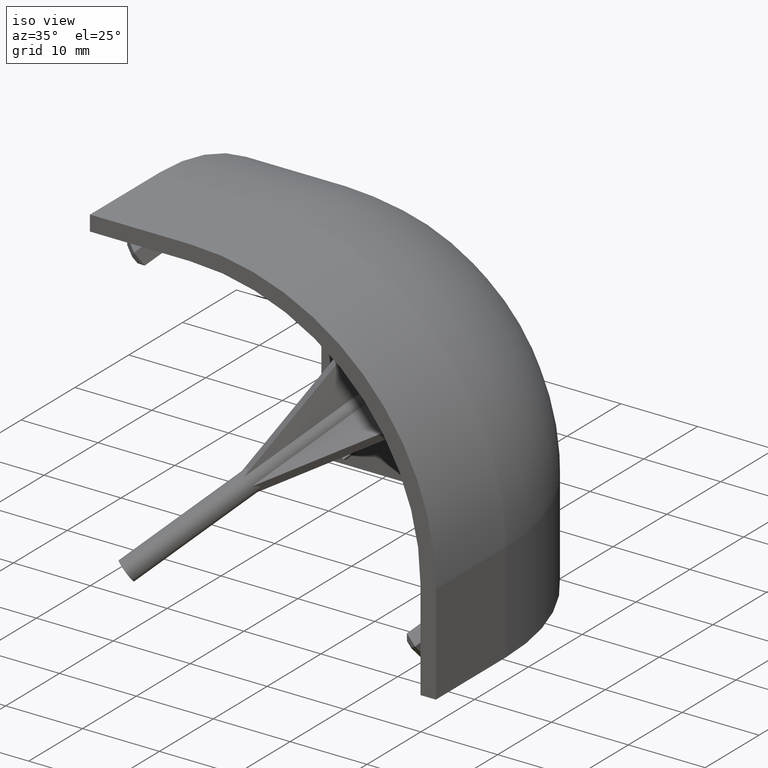
[diagram: clean part render]
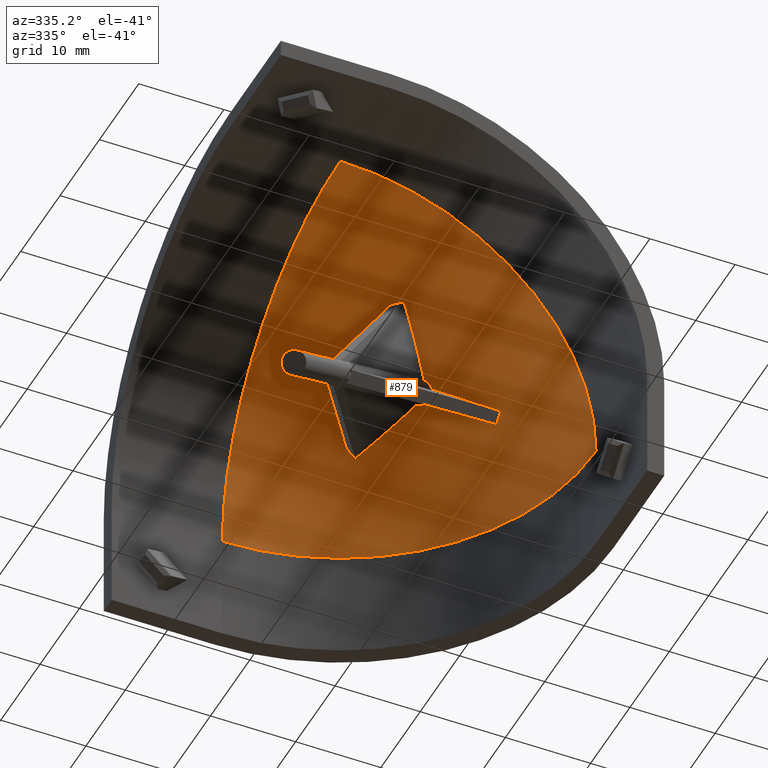
[diagram: tour spotlight — one face highlighted and labeled with its STEP entity id]
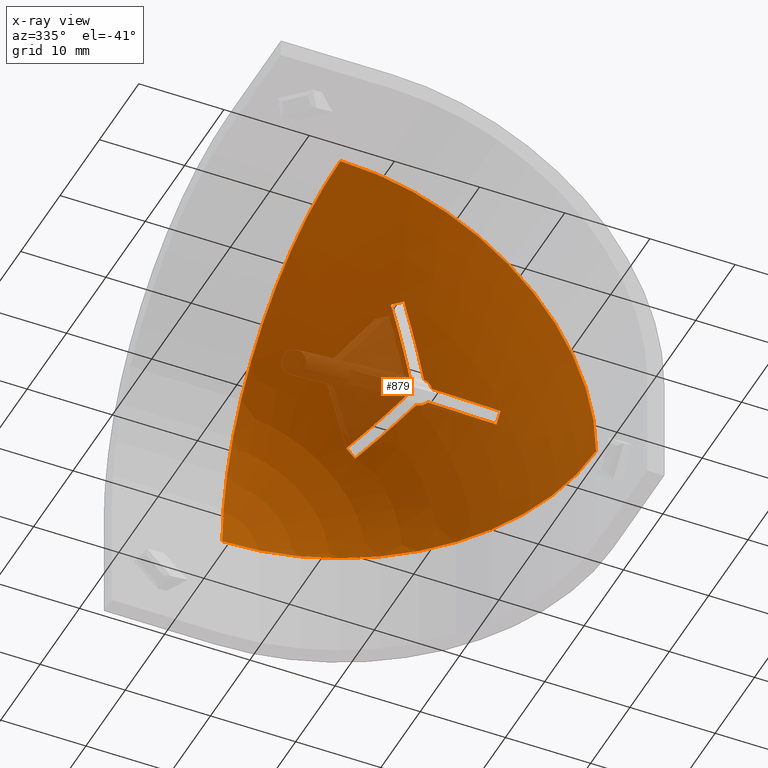
[diagram: x-ray of the same camera — body ghosted, this tour face saturated]
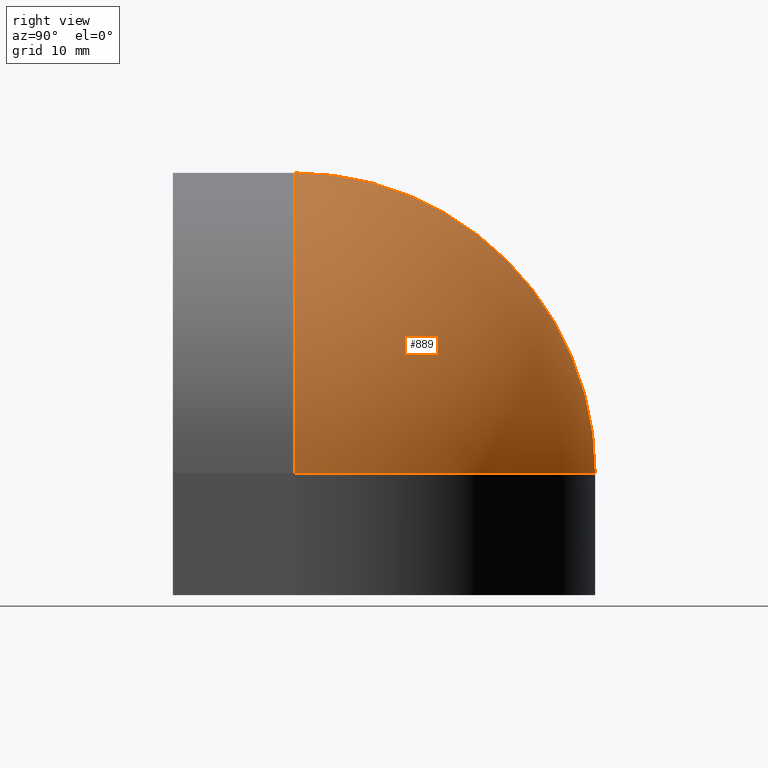
[diagram: tour spotlight — one face highlighted and labeled with its STEP entity id]
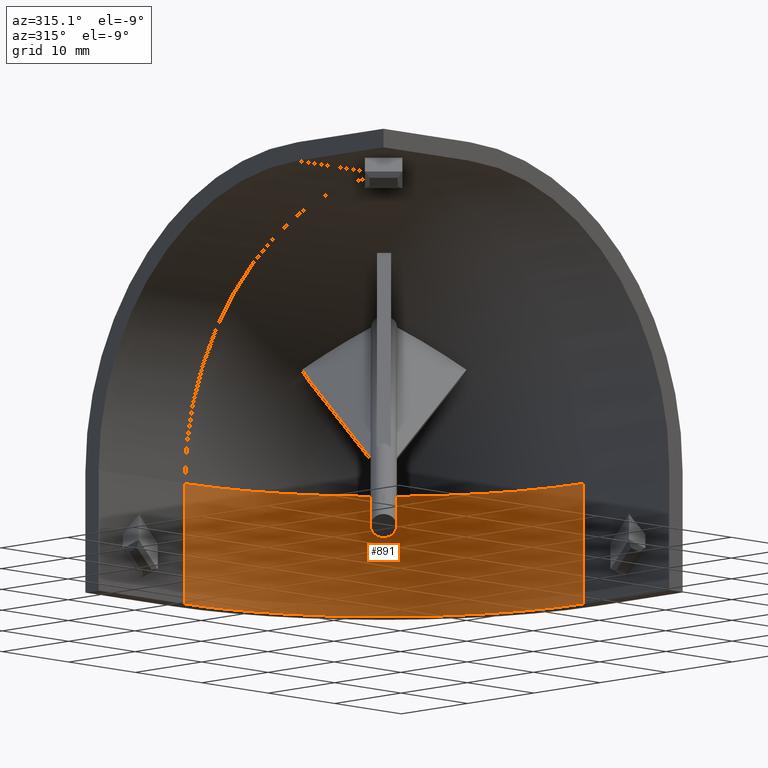
[diagram: tour spotlight — one face highlighted and labeled with its STEP entity id]
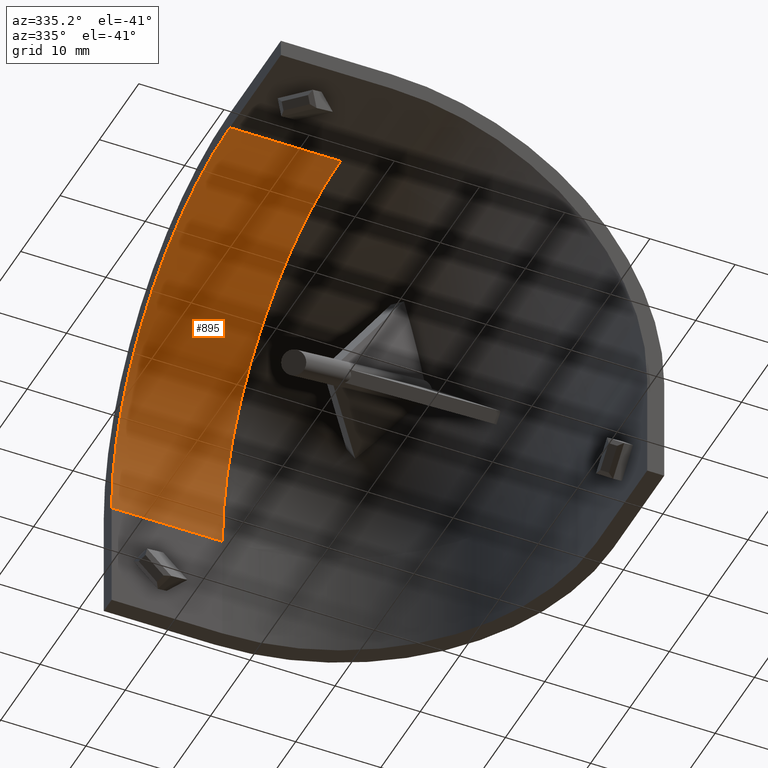
[diagram: tour spotlight — one face highlighted and labeled with its STEP entity id]
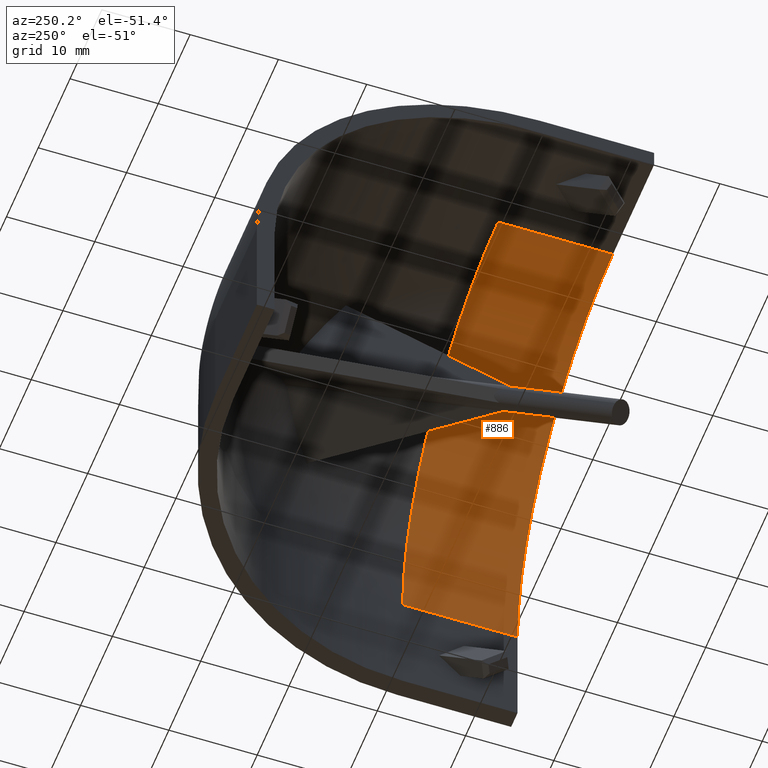
[diagram: tour spotlight — one face highlighted and labeled with its STEP entity id]
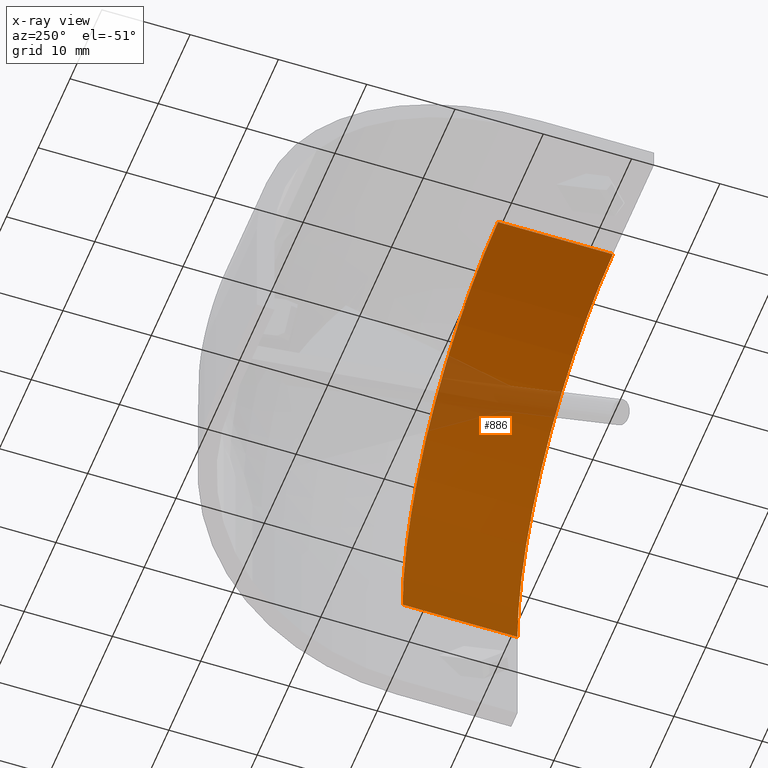
[diagram: x-ray of the same camera — body ghosted, this tour face saturated]
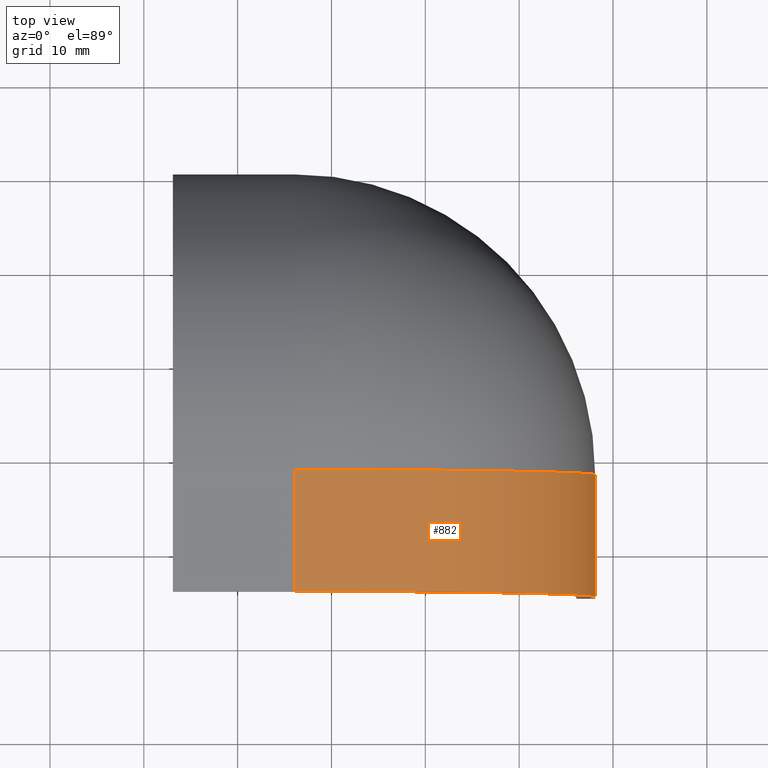
[diagram: tour spotlight — one face highlighted and labeled with its STEP entity id]
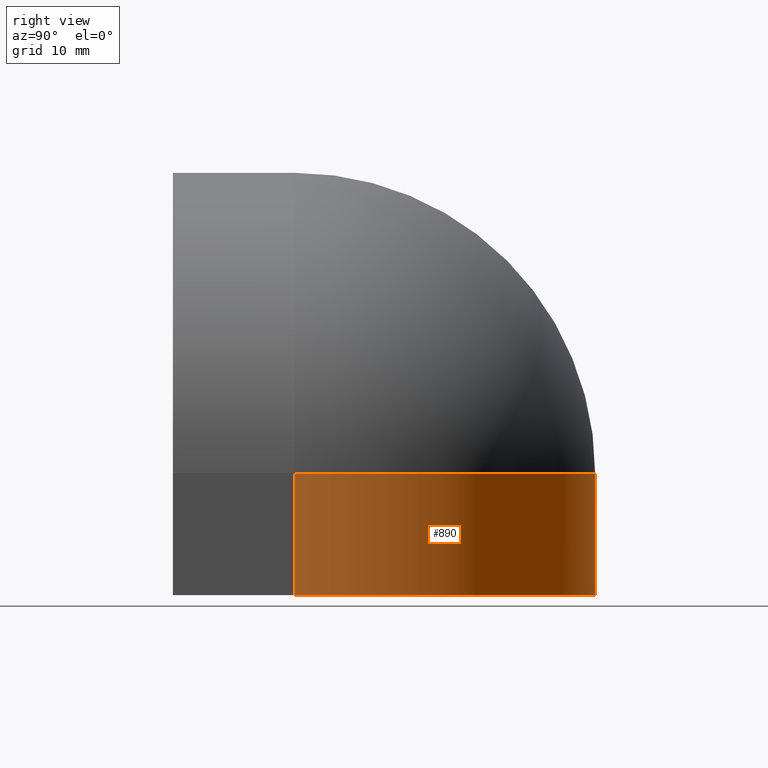
[diagram: tour spotlight — one face highlighted and labeled with its STEP entity id]
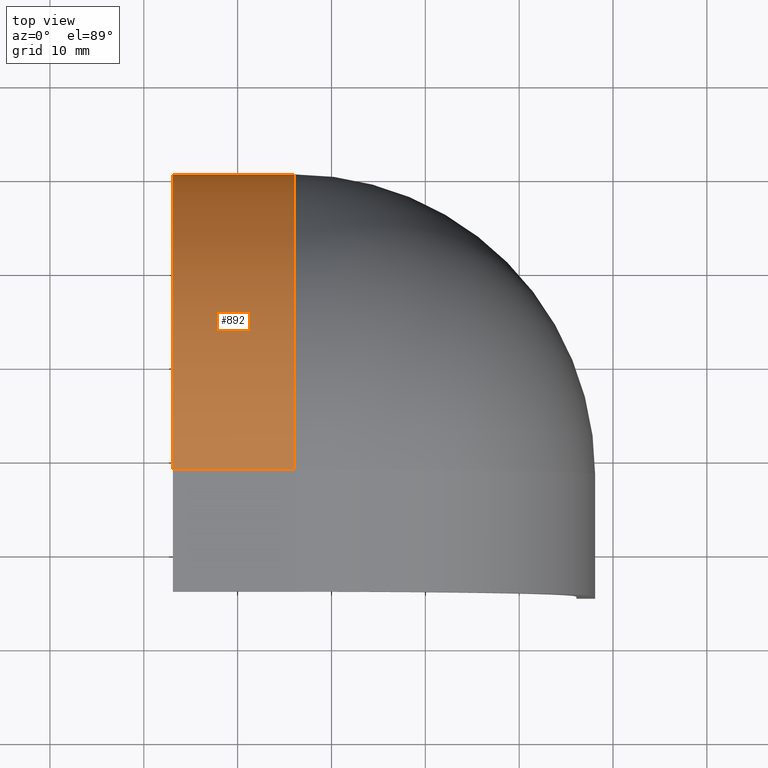
[diagram: tour spotlight — one face highlighted and labeled with its STEP entity id]
A machine part: a face-by-face anatomy tour. The part has 55 B-rep faces; the first image is the clean iso view, then the 8 largest visible faces are spotlighted one at a time (largest first), each with its STEP entity span.

Face 1 — auxiliary view, entity #879. An x-ray twin of the same camera follows (body ghosted, this face saturated) — the face is partly hidden behind the body. In plain terms, the highlighted spherical surface has radius 30 mm.
Definition (entity closure, byte-faithful):
#63=SPHERICAL_SURFACE($,#944,30.);
#66=FACE_BOUND($,#329,.T.);
#272=FACE_OUTER_BOUND($,#328,.T.);
#328=EDGE_LOOP($,(#630,#631,#632));
#329=EDGE_LOOP($,(#633,#634,#635,#636,#637,#638,#639,#640,#641,#642,#643,
#644));
#387=CIRCLE($,#939,1.4);
#388=CIRCLE($,#941,1.4);
#389=CIRCLE($,#943,1.4);
#390=CIRCLE($,#945,30.);
#391=CIRCLE($,#946,30.);
#392=CIRCLE($,#947,30.);
#393=CIRCLE($,#948,29.9616539883931);
#394=CIRCLE($,#949,29.9906235346983);
#395=CIRCLE($,#950,29.9906235346983);
#396=CIRCLE($,#951,29.9616539883931);
#397=CIRCLE($,#952,29.9906235346983);
#398=CIRCLE($,#953,29.9906235346983);
#399=CIRCLE($,#954,29.9616539883931);
#400=CIRCLE($,#955,29.9906235346983);
#401=CIRCLE($,#956,29.9906235346983);
#414=VERTEX_POINT($,#1299);
#415=VERTEX_POINT($,#1301);
#418=VERTEX_POINT($,#1307);
#419=VERTEX_POINT($,#1309);
#422=VERTEX_POINT($,#1315);
#423=VERTEX_POINT($,#1317);
#424=VERTEX_POINT($,#1321);
#425=VERTEX_POINT($,#1322);
#426=VERTEX_POINT($,#1324);
#427=VERTEX_POINT($,#1327);
#428=VERTEX_POINT($,#1328);
#429=VERTEX_POINT($,#1331);
#430=VERTEX_POINT($,#1333);
#431=VERTEX_POINT($,#1336);
#432=VERTEX_POINT($,#1338);
#493=EDGE_CURVE($,#415,#414,#387,.T.);
#497=EDGE_CURVE($,#419,#418,#388,.T.);
#501=EDGE_CURVE($,#423,#422,#389,.T.);
#503=EDGE_CURVE($,#424,#425,#390,.T.);
#504=EDGE_CURVE($,#426,#424,#391,.T.);
#505=EDGE_CURVE($,#426,#425,#392,.T.);
#506=EDGE_CURVE($,#427,#428,#393,.T.);
#507=EDGE_CURVE($,#428,#423,#394,.T.);
#508=EDGE_CURVE($,#429,#422,#395,.T.);
#509=EDGE_CURVE($,#429,#430,#396,.T.);
#510=EDGE_CURVE($,#430,#419,#397,.T.);
#511=EDGE_CURVE($,#431,#418,#398,.T.);
#512=EDGE_CURVE($,#431,#432,#399,.T.);
#513=EDGE_CURVE($,#432,#415,#400,.T.);
#514=EDGE_CURVE($,#427,#414,#401,.T.);
#630=ORIENTED_EDGE($,*,*,#503,.F.);
#631=ORIENTED_EDGE($,*,*,#504,.F.);
#632=ORIENTED_EDGE($,*,*,#505,.T.);
#633=ORIENTED_EDGE($,*,*,#506,.T.);
#634=ORIENTED_EDGE($,*,*,#507,.T.);
#635=ORIENTED_EDGE($,*,*,#501,.T.);
#636=ORIENTED_EDGE($,*,*,#508,.F.);
#637=ORIENTED_EDGE($,*,*,#509,.T.);
#638=ORIENTED_EDGE($,*,*,#510,.T.);
#639=ORIENTED_EDGE($,*,*,#497,.T.);
#640=ORIENTED_EDGE($,*,*,#511,.F.);
#641=ORIENTED_EDGE($,*,*,#512,.T.);
#642=ORIENTED_EDGE($,*,*,#513,.T.);
#643=ORIENTED_EDGE($,*,*,#493,.T.);
#644=ORIENTED_EDGE($,*,*,#514,.F.);
#879=ADVANCED_FACE($,(#272,#66),#63,.F.);
#939=AXIS2_PLACEMENT_3D($,#1302,#1030,#1031);
#941=AXIS2_PLACEMENT_3D($,#1310,#1036,#1037);
#943=AXIS2_PLACEMENT_3D($,#1318,#1042,#1043);
#944=AXIS2_PLACEMENT_3D($,#1320,#1045,#1046);
#945=AXIS2_PLACEMENT_3D($,#1323,#1047,#1048);
#946=AXIS2_PLACEMENT_3D($,#1325,#1049,#1050);
#947=AXIS2_PLACEMENT_3D($,#1326,#1051,#1052);
#948=AXIS2_PLACEMENT_3D($,#1329,#1053,#1054);
#949=AXIS2_PLACEMENT_3D($,#1330,#1055,#1056);
#950=AXIS2_PLACEMENT_3D($,#1332,#1057,#1058);
#951=AXIS2_PLACEMENT_3D($,#1334,#1059,#1060);
#952=AXIS2_PLACEMENT_3D($,#1335,#1061,#1062);
#953=AXIS2_PLACEMENT_3D($,#1337,#1063,#1064);
#954=AXIS2_PLACEMENT_3D($,#1339,#1065,#1066);
#955=AXIS2_PLACEMENT_3D($,#1340,#1067,#1068);
#956=AXIS2_PLACEMENT_3D($,#1341,#1069,#1070);
#1030=DIRECTION('center_axis',(0.577350269189624,0.577350269189624,-0.57735026918963));
#1031=DIRECTION('ref_axis',(0.707106781186551,6.40987562127852E-017,0.707106781186544));
#1036=DIRECTION('center_axis',(0.577350269189624,0.577350269189624,-0.57735026918963));
#1037=DIRECTION('ref_axis',(0.707106781186551,6.40987562127852E-017,0.707106781186544));
#1042=DIRECTION('center_axis',(0.577350269189624,0.577350269189624,-0.57735026918963));
#1043=DIRECTION('ref_axis',(0.70710678118655,1.70899131969916E-015,0.707106781186545));
#1045=DIRECTION('center_axis',(5.9211894646675E-017,0.,1.));
#1046=DIRECTION('ref_axis',(1.,0.,0.));
#1047=DIRECTION('center_axis',(0.,0.,-1.));
#1048=DIRECTION('ref_axis',(1.,0.,0.));
#1049=DIRECTION('center_axis',(1.,0.,0.));
#1050=DIRECTION('ref_axis',(0.,0.,1.));
#1051=DIRECTION('center_axis',(0.,-1.,0.));
#1052=DIRECTION('ref_axis',(1.,0.,0.));
#1053=DIRECTION('center_axis',(0.551217453556055,0.551217453556047,0.626353444782071));
#1054=DIRECTION('ref_axis',(-0.750697811457472,-9.17961462769757E-017,0.660645741583915));
#1055=DIRECTION('center_axis',(0.707106781186543,-0.707106781186552,-1.30843890190042E-015));
#1056=DIRECTION('ref_axis',(-0.707106781186552,-0.707106781186543,0.));
#1057=DIRECTION('center_axis',(-0.707106781186556,2.74615064022129E-015,
-0.707106781186539));
#1058=DIRECTION('ref_axis',(0.707106781186539,-1.06429637653395E-014,-0.707106781186556));
#1059=DIRECTION('center_axis',(0.55121745355604,-0.626353444782076,-0.551217453556055));
#1060=DIRECTION('ref_axis',(-2.73519133342325E-014,-0.660645741583926,0.750697811457463));
#1061=DIRECTION('center_axis',(-0.707106781186556,2.74615064022129E-015,
-0.707106781186539));
#1062=DIRECTION('ref_axis',(0.707106781186539,-8.67632915652678E-016,-0.707106781186556));
#1063=DIRECTION('center_axis',(2.77555756156289E-017,0.707106781186548,
0.707106781186547));
#1064=DIRECTION('ref_axis',(2.66074094133488E-015,0.707106781186547,-0.707106781186548));
#1065=DIRECTION('center_axis',(-0.626353444782076,0.551217453556047,-0.551217453556048));
#1066=DIRECTION('ref_axis',(0.660645741583929,4.21738323785582E-014,-0.750697811457461));
#1067=DIRECTION('center_axis',(2.77555756156289E-017,0.707106781186548,
0.707106781186547));
#1068=DIRECTION('ref_axis',(7.98222282400464E-015,0.707106781186547,-0.707106781186548));
#1069=DIRECTION('center_axis',(0.707106781186543,-0.707106781186552,-1.30843890190042E-015));
#1070=DIRECTION('ref_axis',(-0.707106781186552,-0.707106781186543,3.52837385698756E-015));
#1299=CARTESIAN_POINT('',(30.3493533652992,29.2886931935193,-31.2668665029666));
#1301=CARTESIAN_POINT('',(31.2668665029663,29.2886931935194,-30.3493533652995));
#1302=CARTESIAN_POINT('Origin',(30.3016376872806,30.3016376872806,-30.3016376872239));
#1307=CARTESIAN_POINT('',(31.2668665029663,30.3493533652992,-29.2886931935196));
#1309=CARTESIAN_POINT('',(30.3493533652992,31.2668665029663,-29.2886931935197));
#1310=CARTESIAN_POINT('Origin',(30.3016376872806,30.3016376872806,-30.3016376872239));
#1315=CARTESIAN_POINT('',(29.2886931935194,31.2668665029663,-30.3493533652995));
#1317=CARTESIAN_POINT('',(29.2886931935194,30.3493533652991,-31.2668665029666));
#1318=CARTESIAN_POINT('Origin',(30.3016376872806,30.3016376872806,-30.3016376872239));
#1320=CARTESIAN_POINT('Origin',(13.,13.,-13.));
#1321=CARTESIAN_POINT('',(12.9999999999998,43.,-13.));
#1322=CARTESIAN_POINT('',(43.0000000000001,12.9999999999998,-13.));
#1323=CARTESIAN_POINT('Origin',(13.,13.,-13.));
#1324=CARTESIAN_POINT('',(12.9999999999999,12.9999999999996,-43.));
#1325=CARTESIAN_POINT('Origin',(13.,13.,-13.));
#1326=CARTESIAN_POINT('Origin',(13.,12.9999999999996,-13.));
#1327=CARTESIAN_POINT('',(25.9603179193382,24.8996577475581,-37.298730520763));
#1328=CARTESIAN_POINT('',(24.8996577475584,25.960317919338,-37.298730520763));
#1329=CARTESIAN_POINT('Origin',(12.1641663295399,12.1641663295399,-13.9497654607635));
#1330=CARTESIAN_POINT('Origin',(12.4696699141102,13.5303300858899,-13.));
#1331=CARTESIAN_POINT('',(24.8996577475583,37.2987305207628,-25.9603179193386));
#1332=CARTESIAN_POINT('Origin',(12.46966991411,13.,-13.53033008589));
#1333=CARTESIAN_POINT('',(25.9603179193381,37.2987305207628,-24.8996577475587));
#1334=CARTESIAN_POINT('Origin',(12.16416632954,13.9497654607634,-12.1641663295399));
#1335=CARTESIAN_POINT('Origin',(13.5303300858898,13.,-12.4696699141102));
#1336=CARTESIAN_POINT('',(37.2987305207628,25.9603179193383,-24.8996577475585));
#1337=CARTESIAN_POINT('Origin',(13.,13.5303300858899,-12.4696699141101));
#1338=CARTESIAN_POINT('',(37.2987305207628,24.8996577475585,-25.9603179193383));
#1339=CARTESIAN_POINT('Origin',(13.9497654607634,12.16416632954,-12.16416632954));
#1340=CARTESIAN_POINT('Origin',(13.,12.4696699141101,-13.5303300858899));
#1341=CARTESIAN_POINT('Origin',(13.53033008589,12.46966991411,-13.));

Face 2 — right view, entity #889. In plain terms, the highlighted spherical surface has radius 32 mm.
Definition (entity closure, byte-faithful):
#64=SPHERICAL_SURFACE($,#973,32.);
#282=FACE_OUTER_BOUND($,#341,.T.);
#341=EDGE_LOOP($,(#701,#702,#703));
#405=CIRCLE($,#963,32.);
#409=CIRCLE($,#974,32.);
#410=CIRCLE($,#975,32.);
#442=VERTEX_POINT($,#1362);
#444=VERTEX_POINT($,#1368);
#461=VERTEX_POINT($,#1418);
#528=EDGE_CURVE($,#444,#442,#405,.T.);
#553=EDGE_CURVE($,#461,#444,#409,.T.);
#554=EDGE_CURVE($,#442,#461,#410,.T.);
#701=ORIENTED_EDGE($,*,*,#553,.F.);
#702=ORIENTED_EDGE($,*,*,#554,.F.);
#703=ORIENTED_EDGE($,*,*,#528,.F.);
#889=ADVANCED_FACE($,(#282),#64,.T.);
#963=AXIS2_PLACEMENT_3D($,#1370,#1093,#1094);
#973=AXIS2_PLACEMENT_3D($,#1417,#1134,#1135);
#974=AXIS2_PLACEMENT_3D($,#1419,#1136,#1137);
#975=AXIS2_PLACEMENT_3D($,#1420,#1138,#1139);
#1093=DIRECTION('center_axis',(0.,0.,1.));
#1094=DIRECTION('ref_axis',(1.,0.,0.));
#1134=DIRECTION('center_axis',(5.55111512312578E-017,0.,1.));
#1135=DIRECTION('ref_axis',(1.,0.,0.));
#1136=DIRECTION('center_axis',(0.,-1.,0.));
#1137=DIRECTION('ref_axis',(1.,0.,0.));
#1138=DIRECTION('center_axis',(-1.,0.,0.));
#1139=DIRECTION('ref_axis',(0.,0.,1.));
#1362=CARTESIAN_POINT('',(12.9999999999998,45.,-13.));
#1368=CARTESIAN_POINT('',(45.0000000000001,12.9999999999998,-13.));
#1370=CARTESIAN_POINT('Origin',(13.,13.,-13.));
#1417=CARTESIAN_POINT('Origin',(13.,13.,-13.));
#1418=CARTESIAN_POINT('',(12.9999999999999,12.9999999999996,-45.));
#1419=CARTESIAN_POINT('Origin',(13.,12.9999999999996,-13.));
#1420=CARTESIAN_POINT('Origin',(13.,13.,-13.));

Face 3 — auxiliary view, entity #891. In plain terms, the highlighted cylindrical surface (partial cylindrical patch) has radius 30 mm, axis along (0, 0, -1).
Definition (entity closure, byte-faithful):
#95=LINE($,#1392,#194);
#108=LINE($,#1424,#207);
#194=VECTOR($,#1114,12.9999999999998);
#207=VECTOR($,#1145,12.9999999999998);
#284=FACE_OUTER_BOUND($,#343,.T.);
#343=EDGE_LOOP($,(#708,#709,#710,#711));
#392=CIRCLE($,#947,30.);
#406=CIRCLE($,#966,29.9999999999999);
#425=VERTEX_POINT($,#1322);
#426=VERTEX_POINT($,#1324);
#448=VERTEX_POINT($,#1380);
#449=VERTEX_POINT($,#1382);
#505=EDGE_CURVE($,#426,#425,#392,.T.);
#534=EDGE_CURVE($,#449,#448,#406,.T.);
#540=EDGE_CURVE($,#425,#448,#95,.T.);
#556=EDGE_CURVE($,#449,#426,#108,.T.);
#708=ORIENTED_EDGE($,*,*,#505,.F.);
#709=ORIENTED_EDGE($,*,*,#556,.F.);
#710=ORIENTED_EDGE($,*,*,#534,.T.);
#711=ORIENTED_EDGE($,*,*,#540,.F.);
#875=CYLINDRICAL_SURFACE($,#977,30.);
#891=ADVANCED_FACE($,(#284),#875,.F.);
#947=AXIS2_PLACEMENT_3D($,#1326,#1051,#1052);
#966=AXIS2_PLACEMENT_3D($,#1383,#1104,#1105);
#977=AXIS2_PLACEMENT_3D($,#1423,#1143,#1144);
#1051=DIRECTION('center_axis',(0.,-1.,0.));
#1052=DIRECTION('ref_axis',(1.,0.,0.));
#1104=DIRECTION('center_axis',(0.,-1.,0.));
#1105=DIRECTION('ref_axis',(1.,0.,0.));
#1114=DIRECTION($,(0.,-1.,0.));
#1143=DIRECTION('center_axis',(0.,-1.,0.));
#1144=DIRECTION('ref_axis',(1.,0.,0.));
#1145=DIRECTION($,(0.,1.,0.));
#1322=CARTESIAN_POINT('',(43.0000000000001,12.9999999999998,-13.));
#1324=CARTESIAN_POINT('',(12.9999999999999,12.9999999999996,-43.));
#1326=CARTESIAN_POINT('Origin',(13.,12.9999999999996,-13.));
#1380=CARTESIAN_POINT('',(43.0000000000001,0.,-13.));
#1382=CARTESIAN_POINT('',(13.,-1.94289029309402E-013,-42.9999999999999));
#1383=CARTESIAN_POINT('Origin',(13.0000000000001,-2.22044604925031E-013,
-13.));
#1392=CARTESIAN_POINT($,(43.0000000000001,12.9999999999998,-13.));
#1423=CARTESIAN_POINT('Origin',(12.9999999999998,45.,-13.));
#1424=CARTESIAN_POINT($,(13.,-1.94289029309402E-013,-42.9999999999999));

Face 4 — auxiliary view, entity #895. In plain terms, the highlighted cylindrical surface (partial cylindrical patch) has radius 30 mm, axis along (1, 0, 0).
Definition (entity closure, byte-faithful):
#102=LINE($,#1407,#201);
#110=LINE($,#1429,#209);
#201=VECTOR($,#1127,12.9999999999998);
#209=VECTOR($,#1153,12.9999999999999);
#288=FACE_OUTER_BOUND($,#348,.T.);
#348=EDGE_LOOP($,(#728,#729,#730,#731));
#391=CIRCLE($,#946,30.);
#403=CIRCLE($,#959,30.);
#424=VERTEX_POINT($,#1321);
#426=VERTEX_POINT($,#1324);
#439=VERTEX_POINT($,#1354);
#440=VERTEX_POINT($,#1356);
#504=EDGE_CURVE($,#426,#424,#391,.T.);
#521=EDGE_CURVE($,#439,#440,#403,.T.);
#548=EDGE_CURVE($,#440,#424,#102,.T.);
#558=EDGE_CURVE($,#439,#426,#110,.T.);
#728=ORIENTED_EDGE($,*,*,#521,.F.);
#729=ORIENTED_EDGE($,*,*,#558,.T.);
#730=ORIENTED_EDGE($,*,*,#504,.T.);
#731=ORIENTED_EDGE($,*,*,#548,.F.);
#877=CYLINDRICAL_SURFACE($,#981,30.);
#895=ADVANCED_FACE($,(#288),#877,.F.);
#946=AXIS2_PLACEMENT_3D($,#1325,#1049,#1050);
#959=AXIS2_PLACEMENT_3D($,#1357,#1080,#1081);
#981=AXIS2_PLACEMENT_3D($,#1438,#1158,#1159);
#1049=DIRECTION('center_axis',(1.,0.,0.));
#1050=DIRECTION('ref_axis',(0.,0.,1.));
#1080=DIRECTION('center_axis',(1.,0.,0.));
#1081=DIRECTION('ref_axis',(0.,0.,1.));
#1127=DIRECTION($,(1.,0.,0.));
#1153=DIRECTION($,(1.,0.,0.));
#1158=DIRECTION('center_axis',(1.,0.,0.));
#1159=DIRECTION('ref_axis',(0.,1.,0.));
#1321=CARTESIAN_POINT('',(12.9999999999998,43.,-13.));
#1324=CARTESIAN_POINT('',(12.9999999999999,12.9999999999996,-43.));
#1325=CARTESIAN_POINT('Origin',(13.,13.,-13.));
#1354=CARTESIAN_POINT('',(0.,12.9999999999995,-42.9999999999999));
#1356=CARTESIAN_POINT('',(0.,43.,-13.));
#1357=CARTESIAN_POINT('Origin',(0.,12.9999999999999,-13.));
#1407=CARTESIAN_POINT($,(0.,43.,-13.));
#1429=CARTESIAN_POINT($,(0.,12.9999999999992,-42.9999999999997));
#1438=CARTESIAN_POINT('Origin',(-55.2177507691141,12.9999999999995,-12.9999999999998));

Face 5 — auxiliary view, entity #886. An x-ray twin of the same camera follows (body ghosted, this face saturated) — the face is partly hidden behind the body. In plain terms, the highlighted cylindrical surface (partial cylindrical patch) has radius 30 mm, axis along (0, -1, -0).
Definition (entity closure, byte-faithful):
#94=LINE($,#1391,#193);
#100=LINE($,#1404,#199);
#193=VECTOR($,#1113,13.);
#199=VECTOR($,#1123,13.);
#279=FACE_OUTER_BOUND($,#337,.T.);
#337=EDGE_LOOP($,(#681,#682,#683,#684));
#390=CIRCLE($,#945,30.);
#408=CIRCLE($,#970,30.);
#424=VERTEX_POINT($,#1321);
#425=VERTEX_POINT($,#1322);
#451=VERTEX_POINT($,#1389);
#456=VERTEX_POINT($,#1402);
#503=EDGE_CURVE($,#424,#425,#390,.T.);
#539=EDGE_CURVE($,#425,#451,#94,.T.);
#545=EDGE_CURVE($,#456,#451,#408,.T.);
#546=EDGE_CURVE($,#424,#456,#100,.T.);
#681=ORIENTED_EDGE($,*,*,#545,.F.);
#682=ORIENTED_EDGE($,*,*,#546,.F.);
#683=ORIENTED_EDGE($,*,*,#503,.T.);
#684=ORIENTED_EDGE($,*,*,#539,.T.);
#873=CYLINDRICAL_SURFACE($,#969,30.);
#886=ADVANCED_FACE($,(#279),#873,.F.);
#945=AXIS2_PLACEMENT_3D($,#1323,#1047,#1048);
#969=AXIS2_PLACEMENT_3D($,#1401,#1119,#1120);
#970=AXIS2_PLACEMENT_3D($,#1403,#1121,#1122);
#1047=DIRECTION('center_axis',(0.,0.,-1.));
#1048=DIRECTION('ref_axis',(1.,0.,0.));
#1113=DIRECTION($,(0.,0.,1.));
#1119=DIRECTION('center_axis',(0.,0.,1.));
#1120=DIRECTION('ref_axis',(1.,0.,0.));
#1121=DIRECTION('center_axis',(0.,0.,-1.));
#1122=DIRECTION('ref_axis',(1.,0.,0.));
#1123=DIRECTION($,(0.,0.,1.));
#1321=CARTESIAN_POINT('',(12.9999999999998,43.,-13.));
#1322=CARTESIAN_POINT('',(43.0000000000001,12.9999999999998,-13.));
#1323=CARTESIAN_POINT('Origin',(13.,13.,-13.));
#1389=CARTESIAN_POINT('',(43.0000000000001,12.9999999999998,0.));
#1391=CARTESIAN_POINT($,(43.0000000000001,12.9999999999998,-13.));
#1401=CARTESIAN_POINT('Origin',(13.,13.,-13.));
#1402=CARTESIAN_POINT('',(12.9999999999998,43.,0.));
#1403=CARTESIAN_POINT('Origin',(13.,13.,0.));
#1404=CARTESIAN_POINT($,(12.9999999999998,43.,-13.));

Face 6 — top view, entity #882. In plain terms, the highlighted cylindrical surface (partial cylindrical patch) has radius 32 mm, axis along (0, -1, -0).
Definition (entity closure, byte-faithful):
#83=LINE($,#1363,#182);
#85=LINE($,#1369,#184);
#182=VECTOR($,#1086,13.);
#184=VECTOR($,#1092,13.0000000000001);
#275=FACE_OUTER_BOUND($,#332,.T.);
#332=EDGE_LOOP($,(#657,#658,#659,#660));
#404=CIRCLE($,#962,32.);
#405=CIRCLE($,#963,32.);
#441=VERTEX_POINT($,#1360);
#442=VERTEX_POINT($,#1362);
#443=VERTEX_POINT($,#1366);
#444=VERTEX_POINT($,#1368);
#524=EDGE_CURVE($,#442,#441,#83,.T.);
#526=EDGE_CURVE($,#443,#441,#404,.T.);
#527=EDGE_CURVE($,#444,#443,#85,.T.);
#528=EDGE_CURVE($,#444,#442,#405,.T.);
#657=ORIENTED_EDGE($,*,*,#526,.F.);
#658=ORIENTED_EDGE($,*,*,#527,.F.);
#659=ORIENTED_EDGE($,*,*,#528,.T.);
#660=ORIENTED_EDGE($,*,*,#524,.T.);
#872=CYLINDRICAL_SURFACE($,#961,32.);
#882=ADVANCED_FACE($,(#275),#872,.T.);
#961=AXIS2_PLACEMENT_3D($,#1365,#1088,#1089);
#962=AXIS2_PLACEMENT_3D($,#1367,#1090,#1091);
#963=AXIS2_PLACEMENT_3D($,#1370,#1093,#1094);
#1086=DIRECTION($,(0.,0.,1.));
#1088=DIRECTION('center_axis',(0.,0.,1.));
#1089=DIRECTION('ref_axis',(1.,0.,0.));
#1090=DIRECTION('center_axis',(0.,0.,1.));
#1091=DIRECTION('ref_axis',(1.,0.,0.));
#1092=DIRECTION($,(0.,0.,1.));
#1093=DIRECTION('center_axis',(0.,0.,1.));
#1094=DIRECTION('ref_axis',(1.,0.,0.));
#1360=CARTESIAN_POINT('',(12.9999999999998,45.,0.));
#1362=CARTESIAN_POINT('',(12.9999999999998,45.,-13.));
#1363=CARTESIAN_POINT($,(12.9999999999998,45.,-13.));
#1365=CARTESIAN_POINT('Origin',(13.,13.,-13.));
#1366=CARTESIAN_POINT('',(45.0000000000001,12.9999999999998,9.71445146547012E-014));
#1367=CARTESIAN_POINT('Origin',(13.,13.,0.));
#1368=CARTESIAN_POINT('',(45.0000000000001,12.9999999999998,-13.));
#1369=CARTESIAN_POINT($,(45.0000000000001,12.9999999999998,-13.));
#1370=CARTESIAN_POINT('Origin',(13.,13.,-13.));

Face 7 — right view, entity #890. In plain terms, the highlighted cylindrical surface (partial cylindrical patch) has radius 32 mm, axis along (0, 0, -1).
Definition (entity closure, byte-faithful):
#88=LINE($,#1376,#187);
#107=LINE($,#1422,#206);
#187=VECTOR($,#1099,12.9999999999998);
#206=VECTOR($,#1142,12.9999999999998);
#283=FACE_OUTER_BOUND($,#342,.T.);
#342=EDGE_LOOP($,(#704,#705,#706,#707));
#407=CIRCLE($,#967,31.9999999999999);
#409=CIRCLE($,#974,32.);
#444=VERTEX_POINT($,#1368);
#446=VERTEX_POINT($,#1374);
#450=VERTEX_POINT($,#1385);
#461=VERTEX_POINT($,#1418);
#531=EDGE_CURVE($,#446,#444,#88,.T.);
#537=EDGE_CURVE($,#450,#446,#407,.T.);
#553=EDGE_CURVE($,#461,#444,#409,.T.);
#555=EDGE_CURVE($,#461,#450,#107,.T.);
#704=ORIENTED_EDGE($,*,*,#537,.F.);
#705=ORIENTED_EDGE($,*,*,#555,.F.);
#706=ORIENTED_EDGE($,*,*,#553,.T.);
#707=ORIENTED_EDGE($,*,*,#531,.F.);
#874=CYLINDRICAL_SURFACE($,#976,32.);
#890=ADVANCED_FACE($,(#283),#874,.T.);
#967=AXIS2_PLACEMENT_3D($,#1387,#1108,#1109);
#974=AXIS2_PLACEMENT_3D($,#1419,#1136,#1137);
#976=AXIS2_PLACEMENT_3D($,#1421,#1140,#1141);
#1099=DIRECTION($,(0.,1.,0.));
#1108=DIRECTION('center_axis',(0.,-1.,0.));
#1109=DIRECTION('ref_axis',(1.,0.,0.));
#1136=DIRECTION('center_axis',(0.,-1.,0.));
#1137=DIRECTION('ref_axis',(1.,0.,0.));
#1140=DIRECTION('center_axis',(0.,-1.,0.));
#1141=DIRECTION('ref_axis',(1.,0.,0.));
#1142=DIRECTION($,(0.,-1.,0.));
#1368=CARTESIAN_POINT('',(45.0000000000001,12.9999999999998,-13.));
#1374=CARTESIAN_POINT('',(45.0000000000001,0.,-13.));
#1376=CARTESIAN_POINT($,(45.0000000000001,0.,-13.));
#1385=CARTESIAN_POINT('',(13.,-2.22044604925031E-013,-44.9999999999999));
#1387=CARTESIAN_POINT('Origin',(13.0000000000001,-2.22044604925031E-013,
-13.));
#1418=CARTESIAN_POINT('',(12.9999999999999,12.9999999999996,-45.));
#1419=CARTESIAN_POINT('Origin',(13.,12.9999999999996,-13.));
#1421=CARTESIAN_POINT('Origin',(12.9999999999998,45.,-13.));
#1422=CARTESIAN_POINT($,(12.9999999999999,12.9999999999996,-45.));

Face 8 — top view, entity #892. In plain terms, the highlighted cylindrical surface (partial cylindrical patch) has radius 32 mm, axis along (1, 0, 0).
Definition (entity closure, byte-faithful):
#84=LINE($,#1364,#183);
#109=LINE($,#1426,#208);
#183=VECTOR($,#1087,12.9999999999998);
#208=VECTOR($,#1148,12.9999999999999);
#285=FACE_OUTER_BOUND($,#344,.T.);
#344=EDGE_LOOP($,(#712,#713,#714,#715));
#402=CIRCLE($,#958,32.);
#410=CIRCLE($,#975,32.);
#435=VERTEX_POINT($,#1346);
#436=VERTEX_POINT($,#1348);
#442=VERTEX_POINT($,#1362);
#461=VERTEX_POINT($,#1418);
#517=EDGE_CURVE($,#435,#436,#402,.T.);
#525=EDGE_CURVE($,#442,#435,#84,.T.);
#554=EDGE_CURVE($,#442,#461,#410,.T.);
#557=EDGE_CURVE($,#436,#461,#109,.T.);
#712=ORIENTED_EDGE($,*,*,#517,.F.);
#713=ORIENTED_EDGE($,*,*,#525,.F.);
#714=ORIENTED_EDGE($,*,*,#554,.T.);
#715=ORIENTED_EDGE($,*,*,#557,.F.);
#876=CYLINDRICAL_SURFACE($,#978,32.);
#892=ADVANCED_FACE($,(#285),#876,.T.);
#958=AXIS2_PLACEMENT_3D($,#1349,#1075,#1076);
#975=AXIS2_PLACEMENT_3D($,#1420,#1138,#1139);
#978=AXIS2_PLACEMENT_3D($,#1425,#1146,#1147);
#1075=DIRECTION('center_axis',(-1.,0.,0.));
#1076=DIRECTION('ref_axis',(0.,0.,1.));
#1087=DIRECTION($,(-1.,0.,0.));
#1138=DIRECTION('center_axis',(-1.,0.,0.));
#1139=DIRECTION('ref_axis',(0.,0.,1.));
#1146=DIRECTION('center_axis',(1.,0.,0.));
#1147=DIRECTION('ref_axis',(0.,1.,0.));
#1148=DIRECTION($,(1.,0.,0.));
#1346=CARTESIAN_POINT('',(0.,45.,-13.));
#1348=CARTESIAN_POINT('',(0.,12.9999999999995,-44.9999999999999));
#1349=CARTESIAN_POINT('Origin',(0.,12.9999999999999,-13.));
#1362=CARTESIAN_POINT('',(12.9999999999998,45.,-13.));
#1364=CARTESIAN_POINT($,(12.9999999999998,45.,-13.));
#1418=CARTESIAN_POINT('',(12.9999999999999,12.9999999999996,-45.));
#1420=CARTESIAN_POINT('Origin',(13.,13.,-13.));
#1425=CARTESIAN_POINT('Origin',(-55.2177507691141,12.9999999999995,-12.9999999999998));
#1426=CARTESIAN_POINT($,(0.,12.9999999999991,-44.9999999999997));